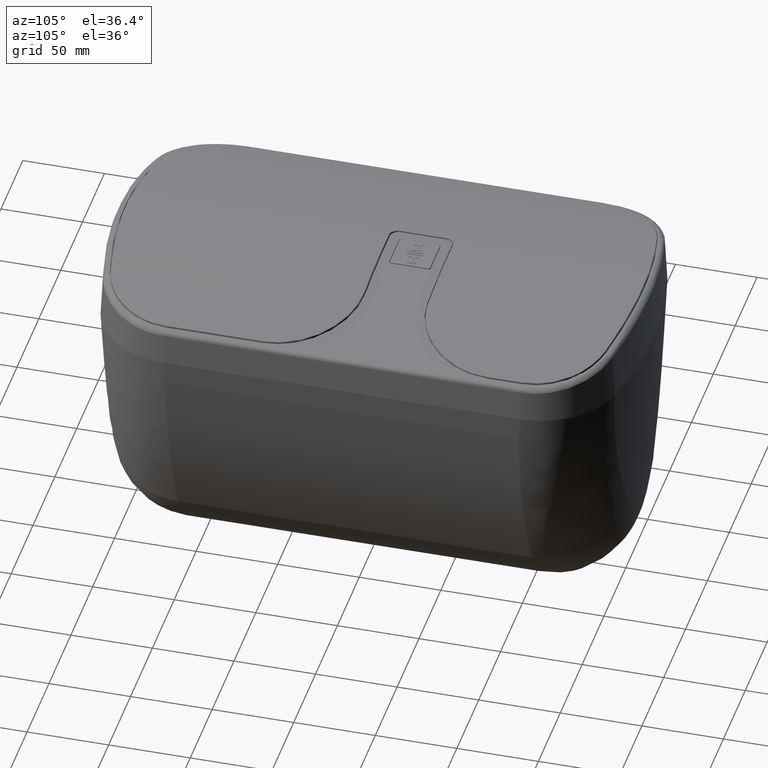
[diagram: clean part render]
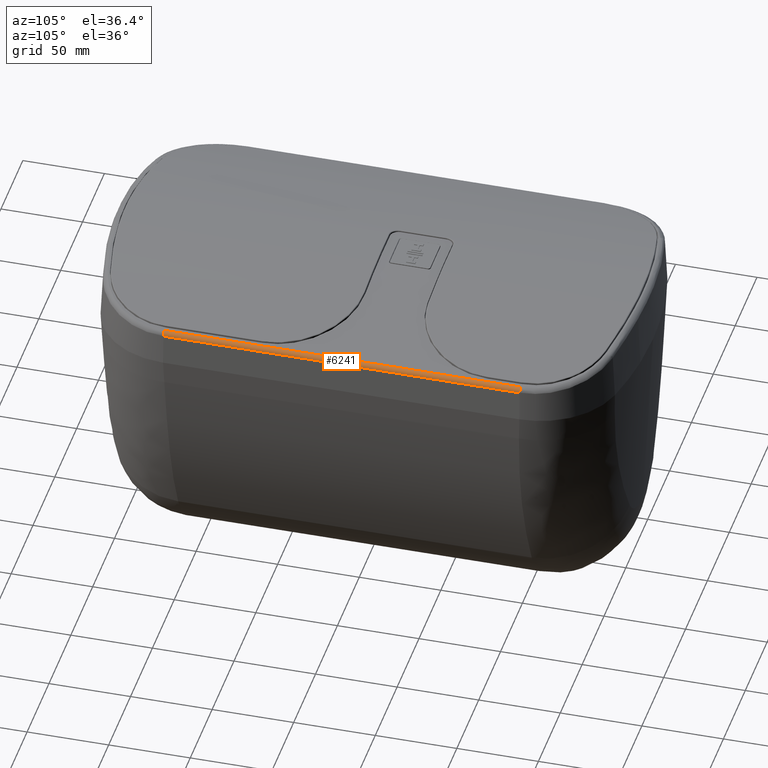
[diagram: same view with one face highlighted and labeled with its STEP entity id]
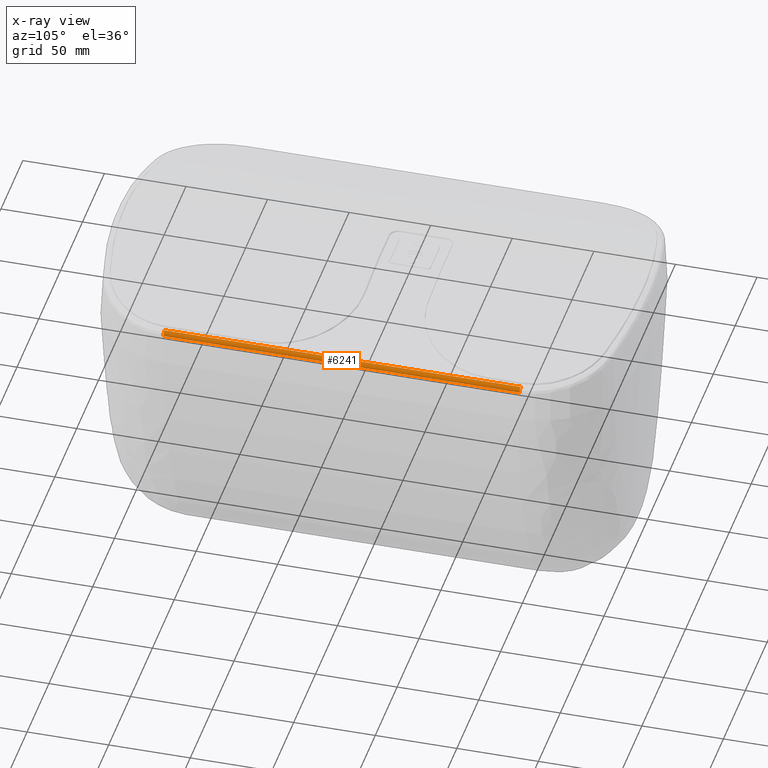
[diagram: x-ray of the same camera — body ghosted, the highlighted face saturated]
A machine part, auxiliary view. The second image highlights one B-rep face of the part: STEP entity #6241.
The next image is the same camera in x-ray: the body ghosted, the highlighted face saturated — about 0% of this face is hidden behind the body in this view.
In plain terms, the highlighted cylindrical surface (edge-blend (fillet) strip) has radius 3 mm, axis along (-0, -1, -0).
Its self-contained STEP definition (entity closure, byte-faithful):
#772 = AXIS2_PLACEMENT_3D ( 'NONE', #26416, #15420, #12764 ) ;
#1226 = CARTESIAN_POINT ( 'NONE',  ( 94.85317013435216893, 160.9795617300732147, 265.5353231177132898 ) ) ;
#4554 = CYLINDRICAL_SURFACE ( 'NONE', #772, 3.000000000000002665 ) ;
#4753 = AXIS2_PLACEMENT_3D ( 'NONE', #18160, #18518, #15819 ) ;
#4837 = CARTESIAN_POINT ( 'NONE',  ( 94.85317013435206945, 716.8257402209086422, 265.5353231177133466 ) ) ;
#6241 = ADVANCED_FACE ( 'Defeatured_0_280', ( #20781 ), #4554, .T. ) ;
#7996 = CARTESIAN_POINT ( 'NONE',  ( 97.01416530956041129, 160.9795617300407571, 262.8108464797822421 ) ) ;
#8312 = CARTESIAN_POINT ( 'NONE',  ( 94.01827670529669945, -57.41042204807178706, 262.6538386110532315 ) ) ;
#8819 = VECTOR ( 'NONE', #13214, 1000.000000000000000 ) ;
#8988 = VERTEX_POINT ( 'NONE', #31993 ) ;
#9260 = EDGE_CURVE ( 'Defeatured_0_280+Defeatured_0_265+Defeatured_0_264+Defeatured_0_266', #12356, #8988, #27218, .T. ) ;
#9730 = AXIS2_PLACEMENT_3D ( 'NONE', #8312, #11343, #26780 ) ;
#9787 = EDGE_CURVE ( 'Defeatured_0_297+Defeatured_0_280+Defeatured_0_279+Defeatured_0_281', #34310, #30122, #18259, .T. ) ;
#9860 = ORIENTED_EDGE ( 'NONE', *, *, #31665, .T. ) ;
#10292 = CIRCLE ( 'NONE', #9730, 3.000000000000002665 ) ;
#11343 = DIRECTION ( 'NONE',  ( 2.465190328815662439E-32, 1.000000000000000000, 4.287526199837192785E-16 ) ) ;
#12356 = VERTEX_POINT ( 'NONE', #1226 ) ;
#12478 = EDGE_LOOP ( 'NONE', ( #9860, #33924, #34028, #33581 ) ) ;
#12764 = DIRECTION ( 'NONE',  ( -1.000000000000000000, 0.0000000000000000000, 0.0000000000000000000 ) ) ;
#13214 = DIRECTION ( 'NONE',  ( -2.465190328815662439E-32, -1.000000000000000000, -4.287526199837192785E-16 ) ) ;
#15420 = DIRECTION ( 'NONE',  ( -2.465190328815662439E-32, -1.000000000000000000, -4.287526199837192785E-16 ) ) ;
#15819 = DIRECTION ( 'NONE',  ( -1.000000000000000000, 0.0000000000000000000, 0.0000000000000000000 ) ) ;
#18160 = CARTESIAN_POINT ( 'NONE',  ( 94.01827670529669945, 160.9795617300407571, 262.6538386110533452 ) ) ;
#18259 = LINE ( 'NONE', #18614, #32653 ) ;
#18518 = DIRECTION ( 'NONE',  ( -2.465190328815662439E-32, -1.000000000000000000, -4.287526199837192785E-16 ) ) ;
#18614 = CARTESIAN_POINT ( 'NONE',  ( 97.01416530956039708, 209.4143642865067250, 262.8108464797822421 ) ) ;
#20781 = FACE_OUTER_BOUND ( 'NONE', #12478, .T. ) ;
#23585 = DIRECTION ( 'NONE',  ( -2.465190328815662439E-32, -1.000000000000000000, -4.287526199837192785E-16 ) ) ;
#26416 = CARTESIAN_POINT ( 'NONE',  ( 94.01827670529669945, 716.8257402209086422, 262.6538386110535725 ) ) ;
#26780 = DIRECTION ( 'NONE',  ( -1.000000000000000000, 0.0000000000000000000, 0.0000000000000000000 ) ) ;
#27218 = LINE ( 'NONE', #4837, #8819 ) ;
#28976 = EDGE_CURVE ( 'Defeatured_0_280+Defeatured_0_264+Defeatured_0_297+Defeatured_0_265', #34310, #12356, #29162, .T. ) ;
#29162 = CIRCLE ( 'NONE', #4753, 3.000000000000002665 ) ;
#30122 = VERTEX_POINT ( 'NONE', #33448 ) ;
#31665 = EDGE_CURVE ( 'Defeatured_0_280+Defeatured_0_266+Defeatured_0_265+Defeatured_0_297', #8988, #30122, #10292, .T. ) ;
#31993 = CARTESIAN_POINT ( 'NONE',  ( 94.85317013435216893, -57.41042204807347105, 265.5353231177131761 ) ) ;
#32653 = VECTOR ( 'NONE', #23585, 1000.000000000000000 ) ;
#33448 = CARTESIAN_POINT ( 'NONE',  ( 97.01416530956041129, -57.41042204809062355, 262.8108464797821284 ) ) ;
#33581 = ORIENTED_EDGE ( 'NONE', *, *, #9260, .T. ) ;
#33924 = ORIENTED_EDGE ( 'NONE', *, *, #9787, .F. ) ;
#34028 = ORIENTED_EDGE ( 'NONE', *, *, #28976, .T. ) ;
#34310 = VERTEX_POINT ( 'NONE', #7996 ) ;